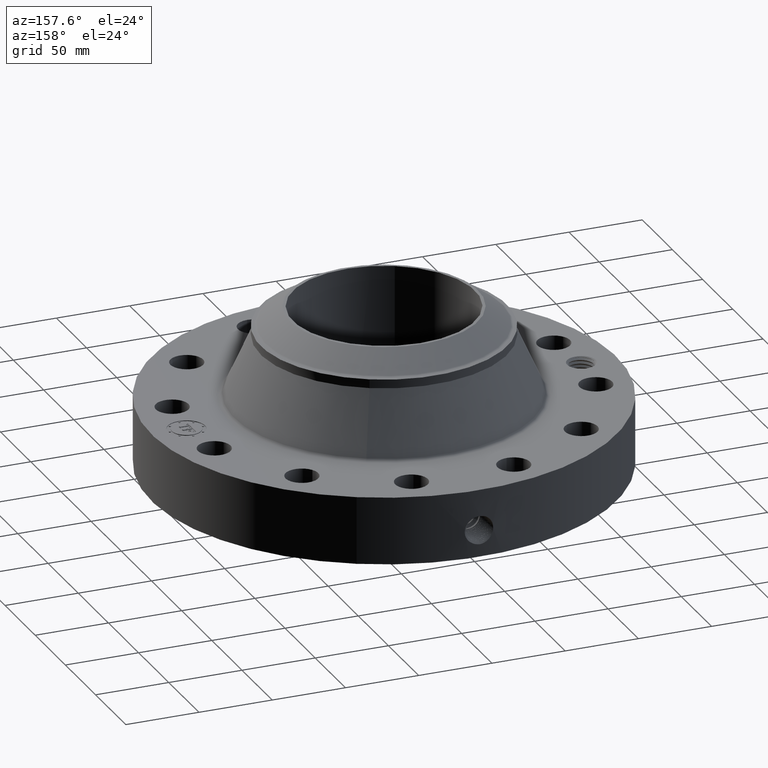
[diagram: clean part render]
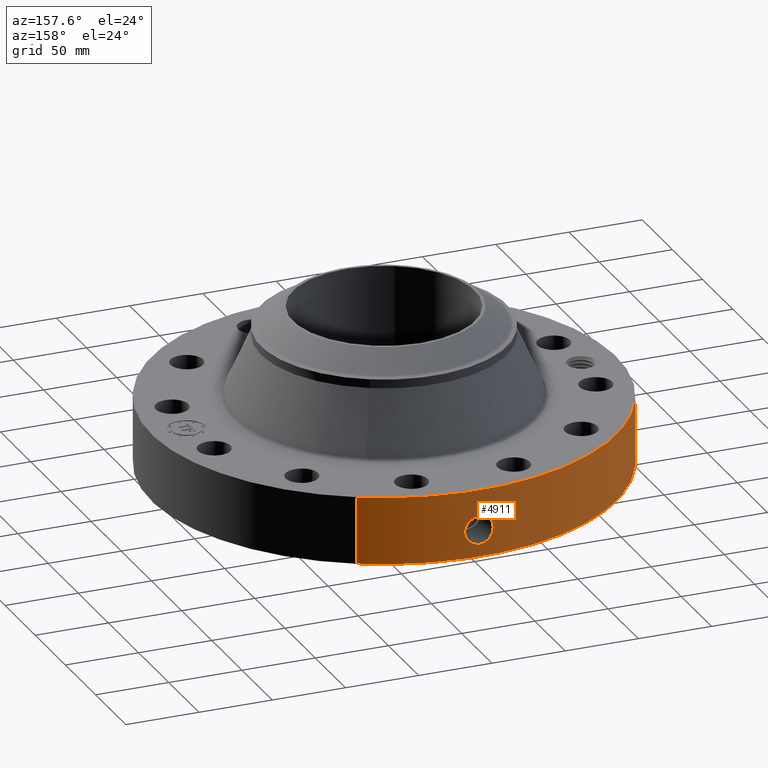
[diagram: same view with one face highlighted and labeled with its STEP entity id]
A machine part, auxiliary view. The second image highlights one B-rep face of the part: STEP entity #4911.
In plain terms, the highlighted cylindrical surface (partial cylindrical patch) has radius 158.75 mm, axis along (0, 0, -1).
Its self-contained STEP definition (entity closure, byte-faithful):
#3849=AXIS2_PLACEMENT_3D('Circle Axis2P3D',#3847,#3848,$) ;
#4303=AXIS2_PLACEMENT_3D('Circle Axis2P3D',#4301,#4302,$) ;
#4807=AXIS2_PLACEMENT_3D('Cylinder Axis2P3D',#4804,#4805,#4806) ;
#3847=CARTESIAN_POINT('Axis2P3D Location',(0.,0.,0.)) ;
#3851=CARTESIAN_POINT('Vertex',(-2.99640961629,-5.48489101184,5.59482469102E-016)) ;
#3853=CARTESIAN_POINT('Vertex',(2.99640961629,5.48489101184,5.59482469102E-016)) ;
#4296=CARTESIAN_POINT('Vertex',(2.99640961629,5.48489101184,1.81300000001)) ;
#4298=CARTESIAN_POINT('Vertex',(-2.99640961629,-5.48489101184,1.81300000001)) ;
#4301=CARTESIAN_POINT('Axis2P3D Location',(0.,0.,1.81300000001)) ;
#4804=CARTESIAN_POINT('Axis2P3D Location',(0.,0.,2.12650000001)) ;
#4809=CARTESIAN_POINT('Line Origine',(-2.99640961629,-5.48489101184,0.906500000004)) ;
#4814=CARTESIAN_POINT('Line Origine',(2.99640961629,5.48489101184,0.906500000004)) ;
#4826=CARTESIAN_POINT('Control Point',(-0.0614644708808,6.24969776222,1.09873436883)) ;
#4827=CARTESIAN_POINT('Control Point',(-0.0414212323462,6.24989488328,1.10227332161)) ;
#4828=CARTESIAN_POINT('Control Point',(-0.0210708577207,6.24999762512,1.10407720134)) ;
#4829=CARTESIAN_POINT('Control Point',(-0.000716625009179,6.24999995894,1.10411849791)) ;
#4830=CARTESIAN_POINT('Vertex',(-0.0614464241207,6.2496982013,1.09873785234)) ;
#4832=CARTESIAN_POINT('Vertex',(-0.000716453227483,6.24999995896,1.10411850827)) ;
#4836=CARTESIAN_POINT('Control Point',(-0.0614463070102,6.24969794083,1.09873724316)) ;
#4837=CARTESIAN_POINT('Control Point',(-0.0996024776069,6.24932279378,1.09347493394)) ;
#4838=CARTESIAN_POINT('Control Point',(-0.136899408554,6.24859399424,1.08129770183)) ;
#4839=CARTESIAN_POINT('Control Point',(-0.171067775012,6.2476584267,1.06316971548)) ;
#4840=CARTESIAN_POINT('Vertex',(-0.171067775012,6.2476584267,1.06316971548)) ;
#4844=CARTESIAN_POINT('Control Point',(-0.0296245443516,6.24992979054,0.341087372776)) ;
#4845=CARTESIAN_POINT('Control Point',(-0.085067525948,6.2496669919,0.348171888579)) ;
#4846=CARTESIAN_POINT('Control Point',(-0.138902304877,6.24879701054,0.365715220559)) ;
#4847=CARTESIAN_POINT('Control Point',(-0.188307427681,6.24740321408,0.393150599951)) ;
#4848=CARTESIAN_POINT('Control Point',(-0.276449759461,6.24415684033,0.465463621805)) ;
#4849=CARTESIAN_POINT('Control Point',(-0.333310201871,6.24118109957,0.562324023174)) ;
#4850=CARTESIAN_POINT('Control Point',(-0.353079980259,6.24002779378,0.616112250475)) ;
#4851=CARTESIAN_POINT('Control Point',(-0.369146432397,6.23909137213,0.704601838569)) ;
#4852=CARTESIAN_POINT('Control Point',(-0.360945861162,6.23956933018,0.792529778589)) ;
#4853=CARTESIAN_POINT('Control Point',(-0.354582003077,6.23994118495,0.824632684956)) ;
#4854=CARTESIAN_POINT('Control Point',(-0.33040806793,6.24131002518,0.902893097265)) ;
#4855=CARTESIAN_POINT('Control Point',(-0.286455101226,6.24352532278,0.972422725427)) ;
#4856=CARTESIAN_POINT('Control Point',(-0.253273546962,6.245034888,1.00958792426)) ;
#4857=CARTESIAN_POINT('Control Point',(-0.21420913244,6.24647716877,1.04028111714)) ;
#4858=CARTESIAN_POINT('Control Point',(-0.171067775012,6.2476584267,1.06316971548)) ;
#4859=CARTESIAN_POINT('Vertex',(-0.0296245443516,6.24992979054,0.341087372776)) ;
#4863=CARTESIAN_POINT('Control Point',(-0.0296245443516,6.24992979054,0.341087372776)) ;
#4864=CARTESIAN_POINT('Control Point',(-0.0197431577964,6.24997662812,0.340860275533)) ;
#4865=CARTESIAN_POINT('Control Point',(-0.00985869176829,6.25000000433,0.340956168037)) ;
#4866=CARTESIAN_POINT('Control Point',(2.7287835298E-006,6.25000000002,0.341374667804)) ;
#4867=CARTESIAN_POINT('Vertex',(2.72878353576E-006,6.25000000002,0.341374667804)) ;
#4871=CARTESIAN_POINT('Control Point',(0.193907788677,6.24699125738,0.395063102329)) ;
#4872=CARTESIAN_POINT('Control Point',(0.13470271163,6.24882899416,0.362547233305)) ;
#4873=CARTESIAN_POINT('Control Point',(0.0677969978521,6.24999997043,0.344251727977)) ;
#4874=CARTESIAN_POINT('Control Point',(2.72878352981E-006,6.25000000002,0.341374667804)) ;
#4875=CARTESIAN_POINT('Vertex',(0.193907788677,6.24699125738,0.395063102329)) ;
#4879=CARTESIAN_POINT('Control Point',(0.193907788677,6.24699125738,0.395063102329)) ;
#4880=CARTESIAN_POINT('Control Point',(0.223359296924,6.246077077,0.411238090522)) ;
#4881=CARTESIAN_POINT('Control Point',(0.251216865767,6.24503864376,0.430307098834)) ;
#4882=CARTESIAN_POINT('Control Point',(0.277075705071,6.24392572689,0.452131253361)) ;
#4883=CARTESIAN_POINT('Control Point',(0.344938074312,6.24068148302,0.522693985705)) ;
#4884=CARTESIAN_POINT('Control Point',(0.389128162877,6.23793966725,0.611689973676)) ;
#4885=CARTESIAN_POINT('Control Point',(0.405171661891,6.23683264769,0.675656412512)) ;
#4886=CARTESIAN_POINT('Control Point',(0.407320033871,6.23674970228,0.789563725247)) ;
#4887=CARTESIAN_POINT('Control Point',(0.368187373071,6.23918287745,0.894141735253)) ;
#4888=CARTESIAN_POINT('Control Point',(0.344342823268,6.24059961408,0.93551350393)) ;
#4889=CARTESIAN_POINT('Control Point',(0.274833312484,6.244271631,1.02150779292)) ;
#4890=CARTESIAN_POINT('Control Point',(0.180523313055,6.24777195235,1.07763433917)) ;
#4891=CARTESIAN_POINT('Control Point',(0.121387729791,6.24927433208,1.09831328308)) ;
#4892=CARTESIAN_POINT('Control Point',(0.0602306858703,6.25000024927,1.10710706099)) ;
#4893=CARTESIAN_POINT('Control Point',(-2.58579355288E-005,6.24999999997,1.10415298435)) ;
#4894=CARTESIAN_POINT('Vertex',(-2.58579355274E-005,6.24999999997,1.10415298435)) ;
#4898=CARTESIAN_POINT('Control Point',(-0.00071645321662,6.24999995896,1.10411850825)) ;
#4899=CARTESIAN_POINT('Control Point',(-0.000371179189815,6.24999999854,1.10413605498)) ;
#4900=CARTESIAN_POINT('Control Point',(-2.58579421928E-005,6.24999999997,1.10415298434)) ;
#3848=DIRECTION('Axis2P3D Direction',(0.,0.,-0.0393700787402)) ;
#4302=DIRECTION('Axis2P3D Direction',(0.,0.,-0.0393700787402)) ;
#4805=DIRECTION('Axis2P3D Direction',(0.,0.,-0.0393700787402)) ;
#4806=DIRECTION('Axis2P3D XDirection',(0.0188750212049,0.0345504945626,0.)) ;
#4810=DIRECTION('Vector Direction',(0.,0.,-0.0393700787402)) ;
#4815=DIRECTION('Vector Direction',(0.,0.,-0.0393700787402)) ;
#4811=VECTOR('Line Direction',#4810,0.0393700787402) ;
#4816=VECTOR('Line Direction',#4815,0.0393700787402) ;
#4820=ORIENTED_EDGE('',*,*,#3855,.F.) ;
#4821=ORIENTED_EDGE('',*,*,#4813,.T.) ;
#4822=ORIENTED_EDGE('',*,*,#4305,.T.) ;
#4823=ORIENTED_EDGE('',*,*,#4818,.F.) ;
#4903=ORIENTED_EDGE('',*,*,#4834,.F.) ;
#4904=ORIENTED_EDGE('',*,*,#4842,.T.) ;
#4905=ORIENTED_EDGE('',*,*,#4861,.F.) ;
#4906=ORIENTED_EDGE('',*,*,#4869,.T.) ;
#4907=ORIENTED_EDGE('',*,*,#4877,.F.) ;
#4908=ORIENTED_EDGE('',*,*,#4896,.T.) ;
#4909=ORIENTED_EDGE('',*,*,#4901,.F.) ;
#4910=FACE_BOUND('',#4902,.T.) ;
#4911=ADVANCED_FACE('PartBody',(#4824,#4910),#4808,.T.) ;
#4825=B_SPLINE_CURVE_WITH_KNOTS('',3,(#4826,#4827,#4828,#4829),.UNSPECIFIED.,.F.,.U.,(4,4),(4.26351090764,6.52162971882),.UNSPECIFIED.) ;
#4835=B_SPLINE_CURVE_WITH_KNOTS('',3,(#4836,#4837,#4838,#4839),.UNSPECIFIED.,.F.,.U.,(4,4),(0.,4.32778387496),.UNSPECIFIED.) ;
#4843=B_SPLINE_CURVE_WITH_KNOTS('',5,(#4844,#4845,#4846,#4847,#4848,#4849,#4850,#4851,#4852,#4853,#4854,#4855,#4856,#4857,#4858),.UNSPECIFIED.,.F.,.U.,(6,3,3,3,6),(0.,9.71432545699,19.9376217546,25.9632514559,35.0704312929),.UNSPECIFIED.) ;
#4862=B_SPLINE_CURVE_WITH_KNOTS('',3,(#4863,#4864,#4865,#4866),.UNSPECIFIED.,.F.,.U.,(4,4),(0.,1.03063376473),.UNSPECIFIED.) ;
#4870=B_SPLINE_CURVE_WITH_KNOTS('',3,(#4871,#4872,#4873,#4874),.UNSPECIFIED.,.F.,.U.,(4,4),(0.,7.08529389678),.UNSPECIFIED.) ;
#4878=B_SPLINE_CURVE_WITH_KNOTS('',5,(#4879,#4880,#4881,#4882,#4883,#4884,#4885,#4886,#4887,#4888,#4889,#4890,#4891,#4892,#4893),.UNSPECIFIED.,.F.,.U.,(6,3,3,3,6),(0.,5.87428769935,17.0154730951,25.376209082,36.6394055465),.UNSPECIFIED.) ;
#4897=B_SPLINE_CURVE_WITH_KNOTS('',2,(#4898,#4899,#4900),.UNSPECIFIED.,.F.,.U.,(3,3),(1.07159595185,1.09741503161),.UNSPECIFIED.) ;
#3850=CIRCLE('generated circle',#3849,6.25000000003) ;
#4304=CIRCLE('generated circle',#4303,6.25000000002) ;
#4808=CYLINDRICAL_SURFACE('generated cylinder',#4807,6.25000000003) ;
#3855=EDGE_CURVE('',#3852,#3854,#3850,.T.) ;
#4305=EDGE_CURVE('',#4299,#4297,#4304,.T.) ;
#4813=EDGE_CURVE('',#3852,#4299,#4812,.F.) ;
#4818=EDGE_CURVE('',#3854,#4297,#4817,.F.) ;
#4834=EDGE_CURVE('',#4831,#4833,#4825,.T.) ;
#4842=EDGE_CURVE('',#4831,#4841,#4835,.T.) ;
#4861=EDGE_CURVE('',#4860,#4841,#4843,.T.) ;
#4869=EDGE_CURVE('',#4860,#4868,#4862,.T.) ;
#4877=EDGE_CURVE('',#4876,#4868,#4870,.T.) ;
#4896=EDGE_CURVE('',#4876,#4895,#4878,.T.) ;
#4901=EDGE_CURVE('',#4833,#4895,#4897,.T.) ;
#4819=EDGE_LOOP('',(#4820,#4821,#4822,#4823)) ;
#4902=EDGE_LOOP('',(#4903,#4904,#4905,#4906,#4907,#4908,#4909)) ;
#4824=FACE_OUTER_BOUND('',#4819,.T.) ;
#4812=LINE('Line',#4809,#4811) ;
#4817=LINE('Line',#4814,#4816) ;
#3852=VERTEX_POINT('',#3851) ;
#3854=VERTEX_POINT('',#3853) ;
#4297=VERTEX_POINT('',#4296) ;
#4299=VERTEX_POINT('',#4298) ;
#4831=VERTEX_POINT('',#4830) ;
#4833=VERTEX_POINT('',#4832) ;
#4841=VERTEX_POINT('',#4840) ;
#4860=VERTEX_POINT('',#4859) ;
#4868=VERTEX_POINT('',#4867) ;
#4876=VERTEX_POINT('',#4875) ;
#4895=VERTEX_POINT('',#4894) ;